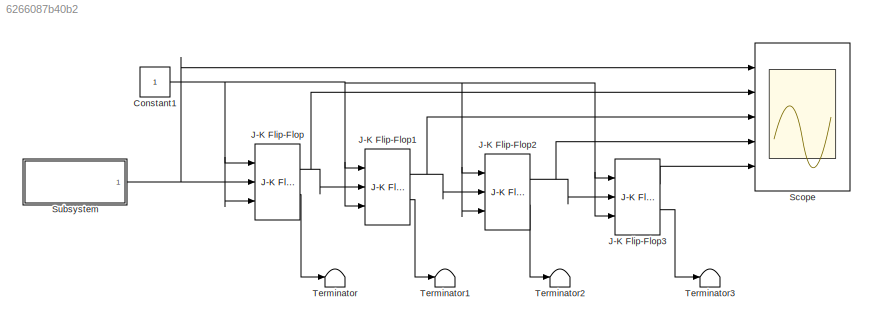
MODEL slx_6266087b40b2
KIND model
CONFIG AbsTol = auto
CONFIG EnableMultiTasking = off
CONFIG FixedStep = .0001
CONFIG MaxStep = auto
CONFIG MinStep = auto
CONFIG RelTol = 1e-3
CONFIG SampleTimeConstraint = Unconstrained
CONFIG Solver = FixedStepDiscrete
CONFIG SolverName = FixedStepDiscrete
CONFIG StartTime = 0.0
CONFIG StopTime = .04
BLOCK [Constant] Constant1
  OutDataTypeStr = boolean
BLOCK [Reference] J-K Flip-Flop  REF=simulink_extras/Flip Flops/J-K
Flip-Flop
  Ports = [3, 2]
  SourceBlock = simulink_extras/Flip Flops/J-K\nFlip-Flop
  SourceType = JKFlipFlop
BLOCK [Reference] J-K Flip-Flop1  REF=simulink_extras/Flip Flops/J-K
Flip-Flop
  Ports = [3, 2]
  SourceBlock = simulink_extras/Flip Flops/J-K\nFlip-Flop
  SourceType = JKFlipFlop
BLOCK [Reference] J-K Flip-Flop2  REF=simulink_extras/Flip Flops/J-K
Flip-Flop
  Ports = [3, 2]
  SourceBlock = simulink_extras/Flip Flops/J-K\nFlip-Flop
  SourceType = JKFlipFlop
BLOCK [Reference] J-K Flip-Flop3  REF=simulink_extras/Flip Flops/J-K
Flip-Flop
  Ports = [3, 2]
  SourceBlock = simulink_extras/Flip Flops/J-K\nFlip-Flop
  SourceType = JKFlipFlop
BLOCK [Scope] Scope
  NumInputPorts = 5
  Ports = [5]
  ScopeSpecificationString = Simulink.scopes.TimeScopeBlockCfg('CurrentConfiguration', extmgr.ConfigurationSet(extmgr.Configuration('Core','General UI',true),extmgr.Configuration('Core','Source UI',true),extmgr.Configuration('Sources','WiredSimulink',true),extmgr.Configuration('Visuals','Time Domain',true,'SerializedDisplays',{struct('MinYLimReal','-0.125','MaxYLimReal','1.125','YLabelReal','','MinYLimMag','0.00000','MaxYLimM...<+4805ch>
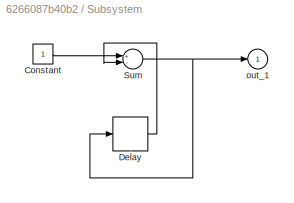
BLOCK [SubSystem] Subsystem
  Ports = [0, 1]
  RequestExecContextInheritance = off
  Variant = off
BLOCK [Constant] Subsystem/Constant
BLOCK [Delay] Subsystem/Delay
  DelayLength = 10
  InitialCondition = 0
  InputPortMap = u0
  Ports = [1, 1]
BLOCK [Sum] Subsystem/Sum
  Inputs = +-
  Ports = [2, 1]
BLOCK [Outport] Subsystem/out_1
  IconDisplay = Port number
  InitialOutput = 0
BLOCK [Terminator] Terminator
BLOCK [Terminator] Terminator1
BLOCK [Terminator] Terminator2
BLOCK [Terminator] Terminator3
NET Constant1:1 -> J-K Flip-Flop1:1, J-K Flip-Flop1:3, J-K Flip-Flop2:1, J-K Flip-Flop2:3, J-K Flip-Flop3:1, J-K Flip-Flop3:3, J-K Flip-Flop:1, J-K Flip-Flop:3
NET J-K Flip-Flop1:1 -> J-K Flip-Flop2:2, Scope:3
LINE J-K Flip-Flop1:2 -> Terminator1:1
NET J-K Flip-Flop2:1 -> J-K Flip-Flop3:2, Scope:4
LINE J-K Flip-Flop2:2 -> Terminator2:1
LINE J-K Flip-Flop3:1 -> Scope:5
LINE J-K Flip-Flop3:2 -> Terminator3:1
NET J-K Flip-Flop:1 -> J-K Flip-Flop1:2, Scope:2
LINE J-K Flip-Flop:2 -> Terminator:1
LINE Subsystem/Constant:1 -> Subsystem/Sum:1
LINE Subsystem/Delay:1 -> Subsystem/Sum:2
NET Subsystem/Sum:1 -> Subsystem/Delay:1, Subsystem/out_1:1
NET Subsystem:1 -> J-K Flip-Flop:2, Scope:1
note: NET lines group one-source signal fan-out (src -> all destinations, sorted); 1:1 wires keep LINE
